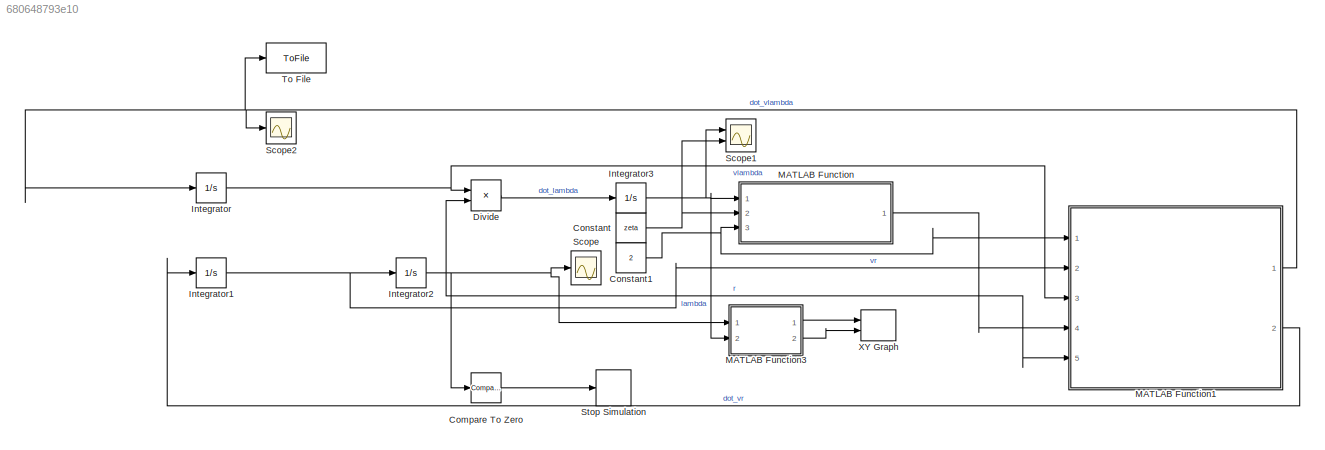
MODEL slx_680648793e10
KIND model
CONFIG AbsTol = auto
CONFIG EnableMultiTasking = off
CONFIG FixedStep = 0.01
CONFIG MaxStep = auto
CONFIG MinStep = auto
CONFIG RelTol = 1e-3
CONFIG SampleTimeConstraint = Unconstrained
CONFIG SolverName = FixedStepAuto
CONFIG StartTime = 0.0
CONFIG StopTime = 100
BLOCK [Reference] Compare To Zero  REF=simulink/Logic and Bit
Operations/Compare
To Zero
  Ports = [1, 1]
  SourceBlock = simulink/Logic and Bit\nOperations/Compare\nTo Zero
  SourceProductBaseCode = SL
  SourceType = Compare To Zero
BLOCK [Constant] Constant
  Value = zeta
BLOCK [Constant] Constant1
  Value = 2
BLOCK [Product] Divide
  Inputs = */
  Ports = [2, 1]
BLOCK [Integrator] Integrator
  InitialCondition = v_lam0
  Ports = [1, 1]
BLOCK [Integrator] Integrator1
  InitialCondition = v_r0
  Ports = [1, 1]
BLOCK [Integrator] Integrator2
  InitialCondition = r0
  Ports = [1, 1]
BLOCK [Integrator] Integrator3
  InitialCondition = lambda0
  Ports = [1, 1]
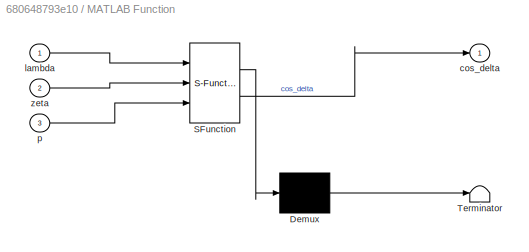
BLOCK [SubSystem] MATLAB Function
  ErrorFcn = Stateflow.Translate.translate
  PermitHierarchicalResolution = ExplicitOnly
  Ports = [3, 1]
  RequestExecContextInheritance = off
  SFBlockType = MATLAB Function
  TreatAsAtomicUnit = on
BLOCK [Demux] MATLAB Function/ Demux 
  Outputs = 1
  Ports = [1, 1]
BLOCK [S-Function] MATLAB Function/ SFunction 
  EnableBusSupport = on
  FunctionName = sf_sfun
  PortCounts = [3 2]
  Ports = [3, 2]
  SFcnIsStateOwnerBlock = off
  SFunctionDeploymentMode = off
  Tag = Stateflow S-Function 2
BLOCK [Terminator] MATLAB Function/ Terminator 
BLOCK [Outport] MATLAB Function/cos_delta
BLOCK [Inport] MATLAB Function/lambda
BLOCK [Inport] MATLAB Function/p
  Port = 3
BLOCK [Inport] MATLAB Function/zeta
  Port = 2
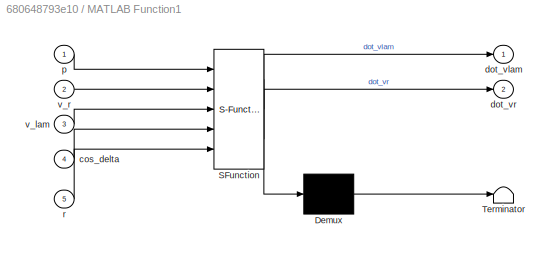
BLOCK [SubSystem] MATLAB Function1
  ErrorFcn = Stateflow.Translate.translate
  PermitHierarchicalResolution = ExplicitOnly
  Ports = [5, 2]
  RequestExecContextInheritance = off
  SFBlockType = MATLAB Function
  TreatAsAtomicUnit = on
BLOCK [Demux] MATLAB Function1/ Demux 
  Outputs = 1
  Ports = [1, 1]
BLOCK [S-Function] MATLAB Function1/ SFunction 
  EnableBusSupport = on
  FunctionName = sf_sfun
  PortCounts = [5 3]
  Ports = [5, 3]
  SFcnIsStateOwnerBlock = off
  SFunctionDeploymentMode = off
  Tag = Stateflow S-Function 1
BLOCK [Terminator] MATLAB Function1/ Terminator 
BLOCK [Inport] MATLAB Function1/cos_delta
  Port = 4
BLOCK [Outport] MATLAB Function1/dot_vlam
BLOCK [Outport] MATLAB Function1/dot_vr
  Port = 2
BLOCK [Inport] MATLAB Function1/p
BLOCK [Inport] MATLAB Function1/r
  Port = 5
BLOCK [Inport] MATLAB Function1/v_lam
  Port = 3
BLOCK [Inport] MATLAB Function1/v_r
  Port = 2
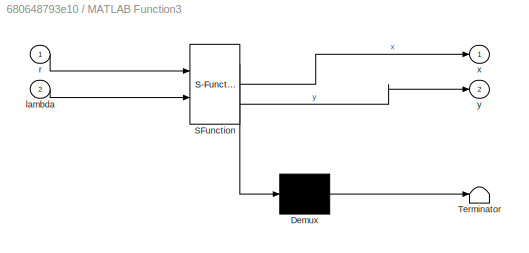
BLOCK [SubSystem] MATLAB Function3
  ErrorFcn = Stateflow.Translate.translate
  PermitHierarchicalResolution = ExplicitOnly
  Ports = [2, 2]
  RequestExecContextInheritance = off
  SFBlockType = MATLAB Function
  TreatAsAtomicUnit = on
BLOCK [Demux] MATLAB Function3/ Demux 
  Outputs = 1
  Ports = [1, 1]
BLOCK [S-Function] MATLAB Function3/ SFunction 
  EnableBusSupport = on
  FunctionName = sf_sfun
  PortCounts = [2 3]
  Ports = [2, 3]
  SFcnIsStateOwnerBlock = off
  SFunctionDeploymentMode = off
  Tag = Stateflow S-Function 4
BLOCK [Terminator] MATLAB Function3/ Terminator 
BLOCK [Inport] MATLAB Function3/lambda
  Port = 2
BLOCK [Inport] MATLAB Function3/r
BLOCK [Outport] MATLAB Function3/x
BLOCK [Outport] MATLAB Function3/y
  Port = 2
BLOCK [Scope] Scope
  Floating = off
  NumInputPorts = 1
  Ports = [1]
  ScopeSpecificationString = Simulink.scopes.TimeScopeBlockCfg('CurrentConfiguration', extmgr.ConfigurationSet(extmgr.Configuration('Core','General UI',true),extmgr.Configuration('Core','Source UI',true),extmgr.Configuration('Sources','WiredSimulink',true),extmgr.Configuration('Visuals','Time Domain',true,'SerializedDisplays',{struct('MinYLimReal','-125.19542','MaxYLimReal','1125.02171','YLabelReal','','MinYLimMag',' 0.00000'...<+1337ch>
BLOCK [Scope] Scope1
  Floating = off
  NumInputPorts = 2
  Ports = [2]
  ScopeSpecificationString = Simulink.scopes.TimeScopeBlockCfg('CurrentConfiguration', extmgr.ConfigurationSet(extmgr.Configuration('Core','General UI',true),extmgr.Configuration('Core','Source UI',true),extmgr.Configuration('Sources','WiredSimulink',true,'DataLoggingVariableName','ScopeData1'),extmgr.Configuration('Visuals','Time Domain',true,'SerializedDisplays',{struct('MinYLimReal','5.20326','MaxYLimReal','8.14851','YLabe...<+1374ch>
BLOCK [Scope] Scope2
  Floating = off
  NumInputPorts = 1
  Ports = [1]
  ScopeSpecificationString = Simulink.scopes.TimeScopeBlockCfg('CurrentConfiguration', extmgr.ConfigurationSet(extmgr.Configuration('Core','General UI',true),extmgr.Configuration('Core','Source UI',true),extmgr.Configuration('Sources','WiredSimulink',true,'DataLoggingVariableName','ScopeData2'),extmgr.Configuration('Visuals','Time Domain',true,'SerializedDisplays',{struct('MinYLimReal','-276.4631','MaxYLimReal','2514.52228','...<+1386ch>
BLOCK [Stop] Stop Simulation
BLOCK [ToFile] To File
  Filename = latax_8.mat
  Ports = [1]
  SaveFormat = Timeseries
BLOCK [Record] XY Graph
  CompatibilityTag = XY
  FileSettingsInternal = {"entries":[{"content":{"excelSettings":{"content":{},"type":"Streamout.ExcelSettings"}},"type":"Streamout.FileSettingStorage","uuid":"7a2c49ac-6534-4055-b3dc-b3cdbea7ba03"}],"packageUris":["http://schema.mathworks.com/mf0/streamout_blocks/R2020a"],"version":"1.0"}
  Layout = [1 1]
  Ports = [2]
  SignalsInternal = {"entries":[{"content":{"signals":[{"content":{"blockPath":["sim_3/XY Graph"],"channel":[],"dimensions":[1],"domain":"sim_3/XY Graph","lineColor":"#a2142f","plots":[1],"port":1,"sid":[""],"signalID":417,"signalName":"MATLAB Function3:1"},"type":"RecordBlkView.Signal","uuid":"e8995922-1af0-4153-bbdd-969861f5b825"},{"content":{"blockPath":["sim_3/XY Graph"],"channel":[],"dimensions":[1],"domain":"si...<+371ch>
  VisualizationBindings = {"xyplotplugin":{"info":[{"series":[{"bindingParametersList":[{"parameter":"X-Axis","signalID":417,"signalName":"MATLAB Function3:1"},{"parameter":"Y-Axis","signalID":421,"signalName":"MATLAB Function3:2"}],"seriesID":43248}],"subplotID":1}]}}
LINE Compare To Zero:1 -> Stop Simulation:1
NET Constant1:1 -> MATLAB Function1:1, MATLAB Function:3
NET Constant:1 -> MATLAB Function:2, Scope1:2
LINE Divide:1 -> Integrator3:1
NET Integrator1:1 -> Integrator2:1, MATLAB Function1:2
NET Integrator2:1 -> Compare To Zero:1, Divide:2, MATLAB Function1:5, MATLAB Function3:1, Scope:1
NET Integrator3:1 -> MATLAB Function3:2, MATLAB Function:1, Scope1:1
NET Integrator:1 -> Divide:1, MATLAB Function1:3
NET MATLAB Function1:1 -> Integrator:1, Scope2:1, To File:1
LINE MATLAB Function1:2 -> Integrator1:1
LINE MATLAB Function3:1 -> XY Graph:1
LINE MATLAB Function3:2 -> XY Graph:2
LINE MATLAB Function:1 -> MATLAB Function1:4
note: NET lines group one-source signal fan-out (src -> all destinations, sorted); 1:1 wires keep LINE
CHART MATLAB Function1 states=1 transitions=1
  STATE_LABEL 'eML_blk_kernel()'
  STATE_LABEL 'SCRIPT:\nfunction [dot_vlam, dot_vr] = ret_rates(p, v_r, v_lam, cos_delta, r)\ndot_vlam = 1/p*v_r*v_lam*(cos_delta^2)/r;\ndot_vr = -1/p*(v_lam^2)*(cos_delta^2)/r;\n'
CHART MATLAB Function states=1 transitions=1
  STATE_LABEL 'eML_blk_kernel()'
  STATE_LABEL 'SCRIPT:\nfunction cos_delta = ret_deltap(lambda, zeta, p)\n\ndelta = atan(1/p*(lambda - zeta));\ncos_delta = cos(delta);\n\n\n'
CHART MATLAB Function3 states=1 transitions=1
  STATE_LABEL 'eML_blk_kernel()'
  STATE_LABEL 'SCRIPT:\nfunction [x, y] = ret_x_y(r, lambda)\n\nx = r*cos(lambda);\ny = r*sin(lambda);\n'
CHART  states=0 transitions=0
CHART  states=0 transitions=0
CHART  states=0 transitions=0
